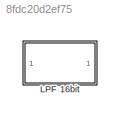
MODEL slx_8fdc20d2ef75
KIND model
CONFIG AbsTol = auto
CONFIG EnableMultiTasking = off
CONFIG FixedStep = auto
CONFIG MaxStep = auto
CONFIG MinStep = auto
CONFIG RelTol = 1e-3
CONFIG SampleTimeConstraint = Unconstrained
CONFIG Solver = VariableStepAuto
CONFIG SolverName = VariableStepAuto
CONFIG StartTime = 0.0
CONFIG StopTime = 10.0
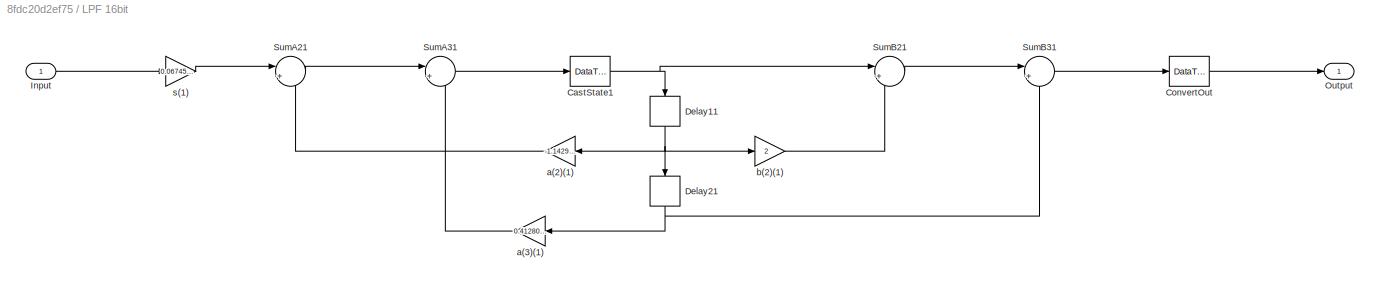
BLOCK [SubSystem] LPF 16bit 
  ErrorFcn = dspFilterRealizedInBasicElemsAlgLoopErrFcnCallback
  Ports = [1, 1]
  RequestExecContextInheritance = off
  Tag = FilterWizardSubSystem
  UserDataPersistent = on
BLOCK [DataTypeConversion] LPF 16bit /CastState1
  OutDataTypeStr = fixdt(1,16,6)
  RndMeth = Floor
  SaturateOnIntegerOverflow = off
BLOCK [DataTypeConversion] LPF 16bit /ConvertOut
  OutDataTypeStr = fixdt(1,16,4)
  RndMeth = Floor
  SaturateOnIntegerOverflow = off
BLOCK [Delay] LPF 16bit /Delay11
  DelayLength = 1
  InitialCondition = 0
  InputPortMap = u0
  Ports = [1, 1]
BLOCK [Delay] LPF 16bit /Delay21
  DelayLength = 1
  InitialCondition = 0
  InputPortMap = u0
  Ports = [1, 1]
BLOCK [Inport] LPF 16bit /Input
  IconDisplay = Port number
BLOCK [Outport] LPF 16bit /Output
  IconDisplay = Port number
BLOCK [Sum] LPF 16bit /SumA21
  AccumDataTypeStr = fixdt(1,16,6)
  IconShape = round
  InputSameDT = off
  Inputs = |+-
  OutDataTypeStr = fixdt(1,16,6)
  Ports = [2, 1]
  SaturateOnIntegerOverflow = off
BLOCK [Sum] LPF 16bit /SumA31
  AccumDataTypeStr = fixdt(1,16,6)
  IconShape = round
  InputSameDT = off
  Inputs = |+-
  OutDataTypeStr = fixdt(1,16,6)
  Ports = [2, 1]
  SaturateOnIntegerOverflow = off
BLOCK [Sum] LPF 16bit /SumB21
  AccumDataTypeStr = fixdt(1,16,5)
  IconShape = round
  InputSameDT = off
  Inputs = |++
  OutDataTypeStr = fixdt(1,16,5)
  Ports = [2, 1]
  SaturateOnIntegerOverflow = off
BLOCK [Sum] LPF 16bit /SumB31
  AccumDataTypeStr = fixdt(1,16,4)
  IconShape = round
  InputSameDT = off
  Inputs = |++
  OutDataTypeStr = fixdt(1,16,4)
  Ports = [2, 1]
  SaturateOnIntegerOverflow = off
BLOCK [Gain] LPF 16bit /a(2)(1)
  Gain = -1.14298050253990113
  OutDataTypeStr = fixdt(1,16,6)
  ParamDataTypeStr = fixdt(1,16,14)
  SaturateOnIntegerOverflow = off
BLOCK [Gain] LPF 16bit /a(3)(1)
  Gain = 0.412801598096188771
  OutDataTypeStr = fixdt(1,16,8)
  ParamDataTypeStr = fixdt(0,16,17)
  SaturateOnIntegerOverflow = off
BLOCK [Gain] LPF 16bit /b(2)(1)
  Gain = 2
  OutDataTypeStr = fixdt(1,16,5)
  ParamDataTypeStr = fixdt(0,16,14)
  SaturateOnIntegerOverflow = off
BLOCK [Gain] LPF 16bit /s(1)
  Gain = 0.0674552738890718956
  OutDataTypeStr = fixdt(1,16,8)
  ParamDataTypeStr = fixdt(0,16,19)
  SaturateOnIntegerOverflow = off
NET LPF 16bit /CastState1:1 -> LPF 16bit /Delay11:1, LPF 16bit /SumB21:1
LINE LPF 16bit /ConvertOut:1 -> LPF 16bit /Output:1
NET LPF 16bit /Delay11:1 -> LPF 16bit /Delay21:1, LPF 16bit /a(2)(1):1, LPF 16bit /b(2)(1):1
NET LPF 16bit /Delay21:1 -> LPF 16bit /SumB31:2, LPF 16bit /a(3)(1):1
LINE LPF 16bit /Input:1 -> LPF 16bit /s(1):1
LINE LPF 16bit /SumA21:1 -> LPF 16bit /SumA31:1
LINE LPF 16bit /SumA31:1 -> LPF 16bit /CastState1:1
LINE LPF 16bit /SumB21:1 -> LPF 16bit /SumB31:1
LINE LPF 16bit /SumB31:1 -> LPF 16bit /ConvertOut:1
LINE LPF 16bit /a(2)(1):1 -> LPF 16bit /SumA21:2
LINE LPF 16bit /a(3)(1):1 -> LPF 16bit /SumA31:2
LINE LPF 16bit /b(2)(1):1 -> LPF 16bit /SumB21:2
LINE LPF 16bit /s(1):1 -> LPF 16bit /SumA21:1
note: NET lines group one-source signal fan-out (src -> all destinations, sorted); 1:1 wires keep LINE
